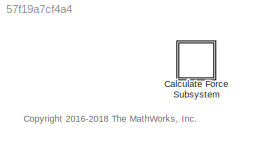
MODEL slx_57f19a7cf4a4
KIND model
CONFIG AbsTol = auto
CONFIG EnableMultiTasking = on
CONFIG FixedStep = auto
CONFIG MaxStep = auto
CONFIG MinStep = auto
CONFIG RelTol = 1e-3
CONFIG SampleTimeConstraint = Unconstrained
CONFIG Solver = VariableStepAuto
CONFIG SolverName = VariableStepAuto
CONFIG StartTime = 0.0
CONFIG StopTime = 10.0
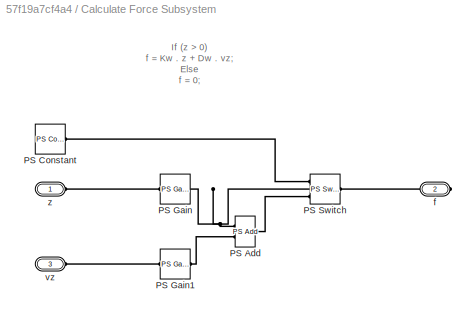
BLOCK [SubSystem] Calculate Force Subsystem
  Ports = [0, 0, 0, 0, 0, 2, 1]
  RequestExecContextInheritance = off
  Variant = off
BLOCK [Reference] Calculate Force Subsystem/PS Add  REF=fl_lib/Physical Signals/Functions/PS Add
  Ports = [0, 0, 0, 0, 0, 2, 1]
  SourceBlock = fl_lib/Physical Signals/Functions/PS Add
  SourceProductBaseCode = SS
  SourceProductName = Simscape
  SourceType = PS Add
BLOCK [Reference] Calculate Force Subsystem/PS Constant  REF=fl_lib/Physical Signals/Sources/PS Constant
  Ports = [0, 0, 0, 0, 0, 0, 1]
  SourceBlock = fl_lib/Physical Signals/Sources/PS Constant
  SourceProductBaseCode = SS
  SourceProductName = Simscape
  SourceType = PS Constant
BLOCK [Reference] Calculate Force Subsystem/PS Gain  REF=fl_lib/Physical Signals/Functions/PS Gain
  Ports = [0, 0, 0, 0, 0, 1, 1]
  SourceBlock = fl_lib/Physical Signals/Functions/PS Gain
  SourceProductBaseCode = SS
  SourceProductName = Simscape
  SourceType = PS Gain
BLOCK [Reference] Calculate Force Subsystem/PS Gain1  REF=fl_lib/Physical Signals/Functions/PS Gain
  Ports = [0, 0, 0, 0, 0, 1, 1]
  SourceBlock = fl_lib/Physical Signals/Functions/PS Gain
  SourceProductBaseCode = SS
  SourceProductName = Simscape
  SourceType = PS Gain
BLOCK [Reference] Calculate Force Subsystem/PS Switch  REF=fl_lib/Physical Signals/Nonlinear Operators/PS Switch
  Ports = [0, 0, 0, 0, 0, 3, 1]
  SourceBlock = fl_lib/Physical Signals/Nonlinear Operators/PS Switch
  SourceProductBaseCode = SS
  SourceProductName = Simscape
  SourceType = PS Switch
BLOCK [PMIOPort] Calculate Force Subsystem/f
  Port = 2
  Side = Right
BLOCK [PMIOPort] Calculate Force Subsystem/vz
  Port = 3
  Side = Left
BLOCK [PMIOPort] Calculate Force Subsystem/z
  Port = 1
  Side = Left
ANNOTATION (root): <copyright redacted>
ANNOTATION Calculate Force Subsystem: If (z > 0) f = Kw . z + Dw . vz; Else f = 0;
PNET net1: Calculate Force Subsystem/PS Add:LConn1 -- Calculate Force Subsystem/PS Gain:RConn1 -- Calculate Force Subsystem/PS Switch:LConn2
PLINE Calculate Force Subsystem/PS Add:LConn2 -- Calculate Force Subsystem/PS Gain1:RConn1
PLINE Calculate Force Subsystem/PS Add:RConn1 -- Calculate Force Subsystem/PS Switch:LConn3
PLINE Calculate Force Subsystem/PS Constant:RConn1 -- Calculate Force Subsystem/PS Switch:LConn1
PLINE Calculate Force Subsystem/PS Gain1:LConn1 -- Calculate Force Subsystem/vz:RConn1
PLINE Calculate Force Subsystem/PS Gain:LConn1 -- Calculate Force Subsystem/z:RConn1
PLINE Calculate Force Subsystem/PS Switch:RConn1 -- Calculate Force Subsystem/f:RConn1
note: PNET lines group multi-terminal physical nets as a canonical sorted terminal list (undirected conserving connections); 2-terminal nets keep the pairwise PLINE form
